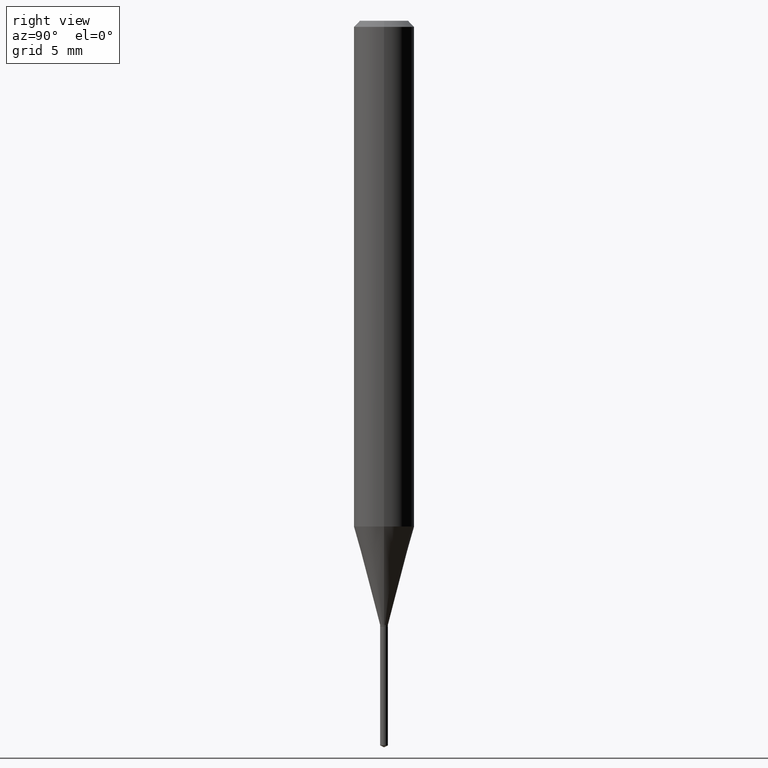
[diagram: clean part render]
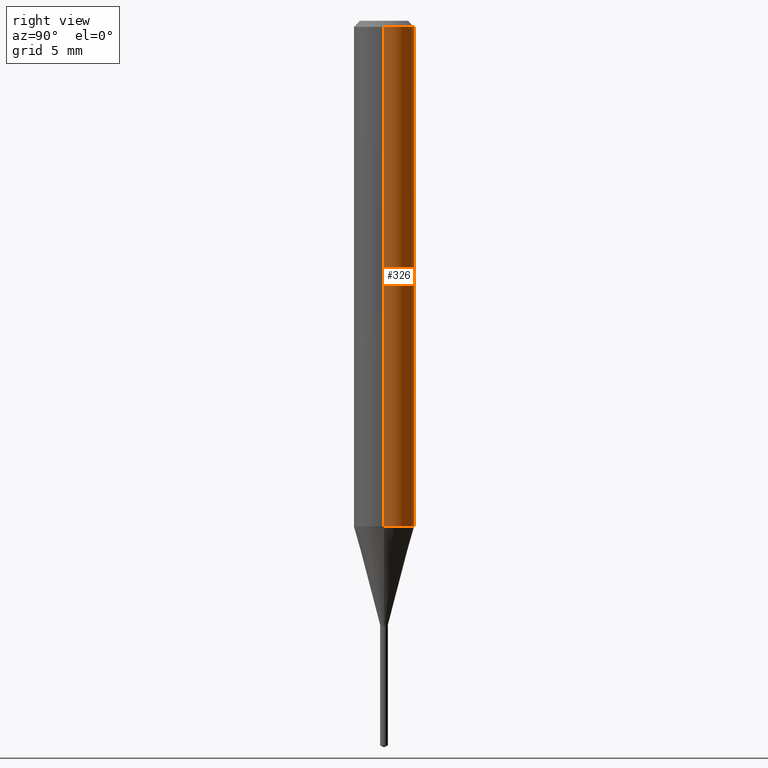
[diagram: same view with one face highlighted and labeled with its STEP entity id]
A machine part, right view. The second image highlights one B-rep face of the part: STEP entity #326.
In plain terms, the highlighted cylindrical surface (edge-blend (fillet) strip) has radius 1.5875 mm, axis along (-0, 0, 1).
Its self-contained STEP definition (entity closure, byte-faithful):
#6 = CIRCLE ( 'NONE', #284, 0.06250000000000000000 ) ;
#42 = CARTESIAN_POINT ( 'NONE',  ( 0.000000000000000000, 0.000000000000000000, 0.000000000000000000 ) ) ;
#44 = ORIENTED_EDGE ( 'NONE', *, *, #130, .F. ) ;
#59 = EDGE_CURVE ( 'NONE', #204, #286, #388, .T. ) ;
#69 = VECTOR ( 'NONE', #147, 39.37007874015748143 ) ;
#116 = DIRECTION ( 'NONE',  ( -2.445468806185136597E-29, 3.491481338843145583E-15, 1.000000000000000000 ) ) ;
#130 = EDGE_CURVE ( 'NONE', #349, #327, #6, .T. ) ;
#139 = DIRECTION ( 'NONE',  ( -2.445468806185136597E-29, 3.491481338843145583E-15, 1.000000000000000000 ) ) ;
#146 = DIRECTION ( 'NONE',  ( 1.000000000000000000, -6.982962677686266711E-15, 0.000000000000000000 ) ) ;
#147 = DIRECTION ( 'NONE',  ( -2.445468806185136877E-29, 3.491481338843145188E-15, 1.000000000000000000 ) ) ;
#166 = AXIS2_PLACEMENT_3D ( 'NONE', #42, #116, #348 ) ;
#178 = LINE ( 'NONE', #374, #261 ) ;
#195 = CYLINDRICAL_SURFACE ( 'NONE', #166, 0.06250000000000006939 ) ;
#204 = VERTEX_POINT ( 'NONE', #489 ) ;
#247 = ORIENTED_EDGE ( 'NONE', *, *, #448, .T. ) ;
#261 = VECTOR ( 'NONE', #337, 39.37007874015748143 ) ;
#270 = CARTESIAN_POINT ( 'NONE',  ( -0.06250000000000013878, -3.201726885102498109E-15, -1.044203230987496234 ) ) ;
#284 = AXIS2_PLACEMENT_3D ( 'NONE', #329, #139, #146 ) ;
#286 = VERTEX_POINT ( 'NONE', #270 ) ;
#302 = LINE ( 'NONE', #451, #69 ) ;
#315 = ORIENTED_EDGE ( 'NONE', *, *, #59, .T. ) ;
#326 = ADVANCED_FACE ( 'NONE', ( #417 ), #195, .T. ) ;
#327 = VERTEX_POINT ( 'NONE', #421 ) ;
#329 = CARTESIAN_POINT ( 'NONE',  ( 3.056836007731441415E-31, -4.364351673553961684E-17, -0.01250000000000008396 ) ) ;
#337 = DIRECTION ( 'NONE',  ( -2.445468806185136877E-29, 3.491481338843145188E-15, 1.000000000000000000 ) ) ;
#348 = DIRECTION ( 'NONE',  ( 1.000000000000000000, -6.982962677686266711E-15, 4.876176775795935793E-29 ) ) ;
#349 = VERTEX_POINT ( 'NONE', #351 ) ;
#351 = CARTESIAN_POINT ( 'NONE',  ( 0.06250000000000000000, -4.800786840909313294E-16, -0.01250000000000008396 ) ) ;
#371 = AXIS2_PLACEMENT_3D ( 'NONE', #476, #450, #413 ) ;
#374 = CARTESIAN_POINT ( 'NONE',  ( -0.06250000000000006939, 4.440892098500631092E-16, -3.074334431409319267E-30 ) ) ;
#388 = CIRCLE ( 'NONE', #371, 0.06250000000000013878 ) ;
#398 = ORIENTED_EDGE ( 'NONE', *, *, #435, .F. ) ;
#413 = DIRECTION ( 'NONE',  ( 1.000000000000000000, -6.982962677686270655E-15, 0.000000000000000000 ) ) ;
#417 = FACE_OUTER_BOUND ( 'NONE', #460, .T. ) ;
#421 = CARTESIAN_POINT ( 'NONE',  ( -0.06250000000000000000, -1.400640595993986935E-15, -0.01250000000000008396 ) ) ;
#435 = EDGE_CURVE ( 'NONE', #204, #349, #302, .T. ) ;
#448 = EDGE_CURVE ( 'NONE', #286, #327, #178, .T. ) ;
#450 = DIRECTION ( 'NONE',  ( -2.445468806185136597E-29, 3.491481338843145583E-15, 1.000000000000000000 ) ) ;
#451 = CARTESIAN_POINT ( 'NONE',  ( 0.06250000000000006939, -4.364351673553921624E-16, 3.047610484872463374E-30 ) ) ;
#460 = EDGE_LOOP ( 'NONE', ( #315, #247, #44, #398 ) ) ;
#476 = CARTESIAN_POINT ( 'NONE',  ( 2.553566428697655198E-29, -3.645816094952562303E-15, -1.044203230987496234 ) ) ;
#489 = CARTESIAN_POINT ( 'NONE',  ( 0.06250000000000013878, -4.082251262307954761E-15, -1.044203230987496234 ) ) ;